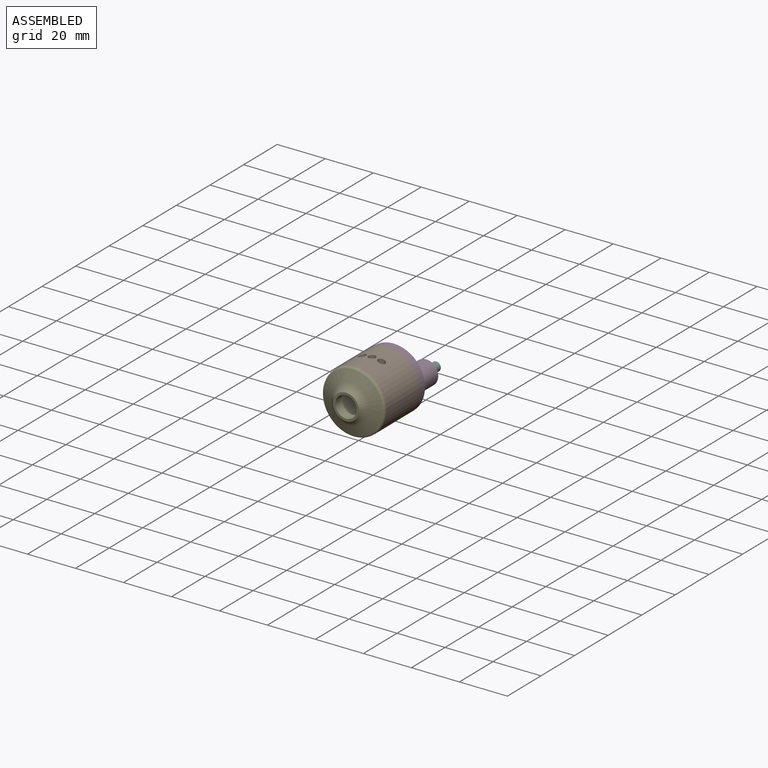
[diagram: assembled view]
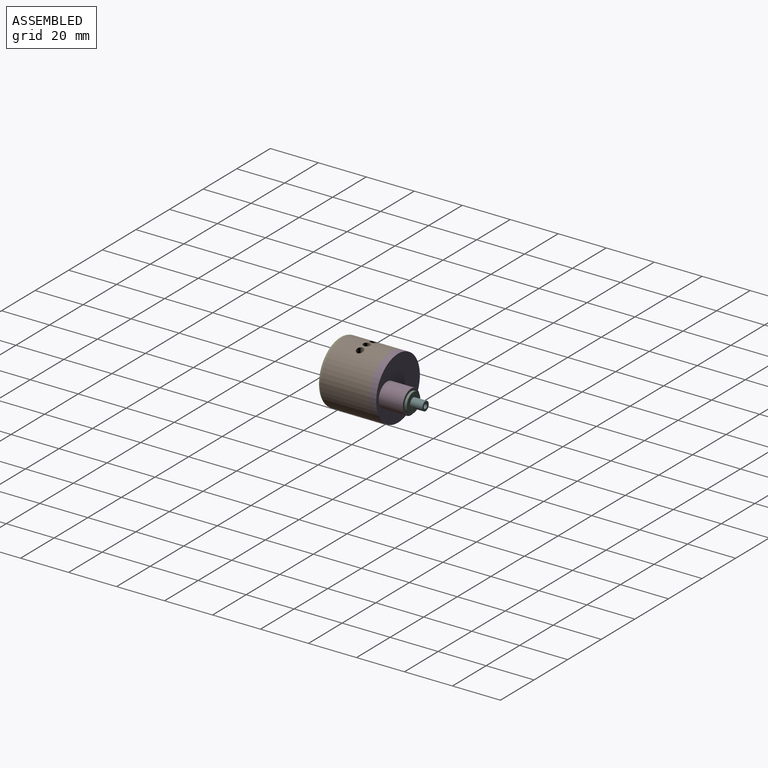
[diagram: assembled view, second angle]
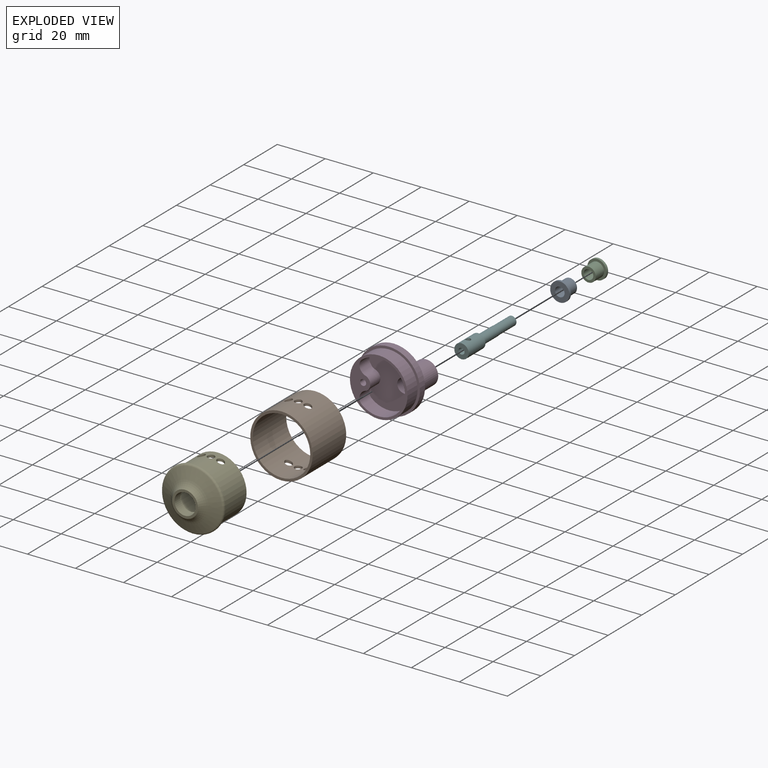
[diagram: exploded view]
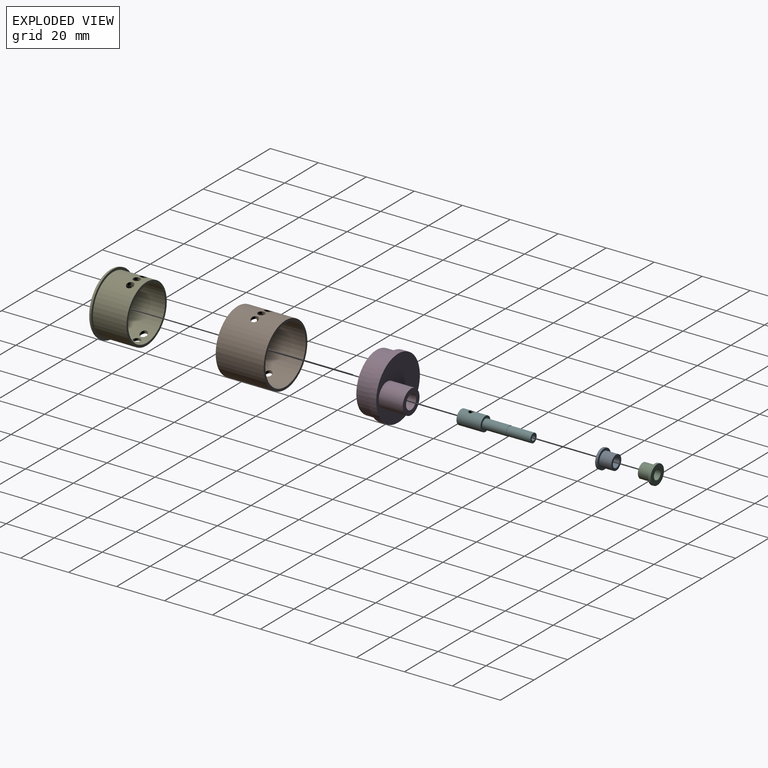
[diagram: exploded view, second angle]
ASSEMBLY  parts=6 mates=5
PART A: 6 faces, bbox 8x6x8 mm
  f0: cylinder r=2mm len=6mm, axis (0,1,0), area 75.4mm2, adj f2,f4
  f1: cylinder r=3mm len=6mm, axis (0,1,0), area 94.2mm2, adj f2,f5
  f2: plane 6x6mm, normal (0,-1,0), area 15.7mm2, adj f0,f1
  f3: cylinder r=4mm len=8mm, axis (0,-1,0), area 25.1mm2, adj f4,f5
  f4: plane 8x8mm, normal (0,1,0), area 37.7mm2, adj f0,f3
  f5: plane 8x8mm, normal (0,-1,0), area 22mm2, adj f1,f3
PART B: 10 faces, bbox 26x20x26 mm
  f0: cylinder r=12mm len=24mm, axis (0,1,0), area 1463.6mm2, adj f2,f3,f4,f5,f6,f7,f8,f9
  f1: cylinder r=13mm len=26mm, axis (0,1,0), area 1589.6mm2, adj f2,f3,f4,f5,f6,f7,f8,f9
  f2: plane 26x26mm, normal (0,-1,0), area 78.5mm2, adj f0,f1
  f3: plane 26x26mm, normal (0,1,0), area 78.5mm2, adj f0,f1
  f4: cylinder r=1.5mm len=3mm, axis (0,0,-1), area 9.5mm2, adj f0,f1
  f5: cylinder r=1.5mm len=3mm, axis (0,0,-1), area 9.5mm2, adj f0,f1
  f6: cylinder r=1.5mm len=3mm, axis (0,0,-1), area 10mm2, adj f0,f1
  f7: cylinder r=1.5mm len=3mm, axis (0,0,-1), area 10mm2, adj f0,f1
  f8: cylinder r=1.5mm len=3mm, axis (0,0,-1), area 10mm2, adj f0,f1
  f9: cylinder r=1.5mm len=3mm, axis (0,0,-1), area 10mm2, adj f0,f1
PART C: same geometry as A
PART D: 19 faces, bbox 26x19x26 mm
  f0: cylinder r=12mm len=24mm, axis (0,1,0), area 452.4mm2, adj f3,f18
  f1: plane 22x19.07mm, normal (0,-1,0), area 293.7mm2, adj f2,f5,f6,f7,f8,f9,f10,f11
  f2: cylinder r=11mm len=22mm, axis (0,1,0), area 298mm2, adj f1,f3,f9,f10
  f3: plane 24x24mm, normal (0,-1,0), area 125.5mm2, adj f0,f2,f5,f6,f7,f8,f9,f10
  f4: plane 26x26mm, normal (0,1,0), area 452.4mm2, adj f13,f17
  f5: plane 6x0.45mm, normal (0.82,0,-0.57), area 3.3mm2, adj f1,f3,f10,f11
  f6: cylinder r=3mm len=6mm, axis (0,1,0), area 45.9mm2, adj f1,f3,f8,f11
  f7: plane 6x0.45mm, normal (0.82,0,0.57), area 3.3mm2, adj f1,f3,f8,f9
  f8: cylinder r=3mm len=6mm, axis (0,1,0), area 12mm2, adj f1,f3,f6,f7
  f9: cylinder r=3mm len=6mm, axis (0,1,0), area 26.9mm2, adj f1,f2,f3,f7
  f10: cylinder r=3mm len=6mm, axis (0,1,0), area 26.9mm2, adj f1,f2,f3,f5
  f11: cylinder r=3mm len=6mm, axis (0,1,0), area 12mm2, adj f1,f3,f5,f6
  f12: cylinder r=3mm len=13mm, axis (0,-1,0), area 245mm2, adj f1,f14
  f13: cylinder r=5mm len=10mm, axis (0,-1,0), area 314.2mm2, adj f4,f14
  f14: plane 10x10mm, normal (0,1,0), area 50.3mm2, adj f12,f13
  f15: cone r=0mm half-angle=59deg, axis (0,-1,0), area 5.7mm2, adj f16
  f16: cylinder r=1.25mm len=5mm, axis (0,-1,0), area 39.3mm2, adj f3,f15
  f17: cylinder r=13mm len=26mm, axis (0,1,0), area 245mm2, adj f4,f18
  f18: plane 26x26mm, normal (0,-1,0), area 78.5mm2, adj f0,f17
PART E: 17 faces, bbox 28.1x21.6x28.1 mm
  f0: cylinder r=11mm len=22mm, axis (0,1,0), area 922.9mm2, adj f2,f3,f4,f5,f6,f7,f8,f12
  f1: cylinder r=12mm len=24mm, axis (0,1,0), area 1011.2mm2, adj f2,f3,f4,f5,f6,f7,f8,f13
  f2: plane 24x24mm, normal (0,1,0), area 72.3mm2, adj f0,f1
  f3: cylinder r=1.5mm len=3mm, axis (0,0,-1), area 10.1mm2, adj f0,f1
  f4: cylinder r=1.5mm len=3mm, axis (0,0,-1), area 10.1mm2, adj f0,f1
  f5: cylinder r=1.5mm len=3mm, axis (0,0,-1), area 9.5mm2, adj f0,f1
  f6: cylinder r=1.5mm len=3mm, axis (0,0,-1), area 9.5mm2, adj f0,f1
  f7: cylinder r=1.5mm len=3mm, axis (0,0,-1), area 10.1mm2, adj f0,f1
  f8: cylinder r=1.5mm len=3mm, axis (0,0,-1), area 10.1mm2, adj f0,f1
  f9: cone r=13mm half-angle=68deg, axis (0,1,0), area 299.2mm2, adj f15,f16
  f10: plane 10.8x10.8mm, normal (0,-1,0), area 30.8mm2, adj f11,f16
  f11: cylinder r=4.4mm len=8.8mm, axis (0,1,0), area 103.3mm2, adj f10,f12
  f12: cone r=11mm half-angle=75deg, axis (0,1,0), area 330.6mm2, adj f0,f11
  f13: plane 26x26mm, normal (0,1,0), area 78.5mm2, adj f1,f14
  f14: cylinder r=13mm len=26mm, axis (0,1,0), area 26.6mm2, adj f13,f15
  f15: torus R=12mm, axis (0,-1,0), area 95.3mm2, adj f9,f14
  f16: torus R=9.93mm, axis (0,-1,0), area 154.2mm2, adj f9,f10
PART F: 13 faces, bbox 6x30x6 mm
  f0: cylinder r=2mm len=10mm, axis (0,-1,0), area 125.7mm2, adj f4,f9
  f1: cylinder r=1mm len=2.25mm, axis (-1,0,0), area 11.9mm2, adj f2,f7
  f2: cylinder r=3mm len=10mm, axis (0,1,0), area 182.1mm2, adj f1,f3,f4,f5
  f3: plane 6x6mm, normal (0,-1,0), area 23.4mm2, adj f2,f7
  f4: plane 6x6mm, normal (0,1,0), area 15.7mm2, adj f0,f2
  f5: cylinder r=1mm len=2.25mm, axis (-1,0,0), area 11.9mm2, adj f2,f7
  f6: plane 2.5x2.5mm, normal (0,-1,0), area 4.9mm2, adj f7
  f7: cylinder r=1.25mm len=5mm, axis (0,-1,0), area 32.3mm2, adj f1,f3,f5,f6
  f8: cylinder r=1.9mm len=10mm, axis (0,1,0), area 119.4mm2, adj f9,f12
  f9: plane 4x4mm, normal (0,1,0), area 1.2mm2, adj f0,f8
  f10: plane 2x2mm, normal (0,1,0), area 3.1mm2, adj f11
  f11: cylinder r=1mm len=5mm, axis (0,1,0), area 31.4mm2, adj f10,f12
  f12: plane 3.8x3.8mm, normal (0,1,0), area 8.2mm2, adj f8,f11
PLACE A rot(axis=(1,0,0),180deg) t=(4.45,0.86,8.32)mm
PLACE B t=(-2.05,0.86,8.32)mm
PLACE C t=(4.45,13.86,8.32)mm
PLACE D t=(-2.05,0.86,8.32)mm fixed
PLACE E t=(-2.05,-5.14,8.32)mm
PLACE F rot(axis=(0,-1,0),90deg) t=(4.45,-0.14,8.32)mm
MATE slider E.f0 <-> D.f0  axis (0,1,0) through (-2.05,-5.14,8.32)mm
MATE fastened F.f2 <-> A.f3  axis (0,1,0) through (4.45,-0.14,8.32)mm
MATE slider B.f0 <-> D.f17  axis (0,1,0) through (-2.05,0.86,8.32)mm
MATE fastened A.f1 <-> D.f12  axis (0,-1,0) through (4.45,0.86,8.32)mm
MATE fastened C.f1 <-> D.f12  axis (0,1,0) through (4.45,13.86,8.32)mm
